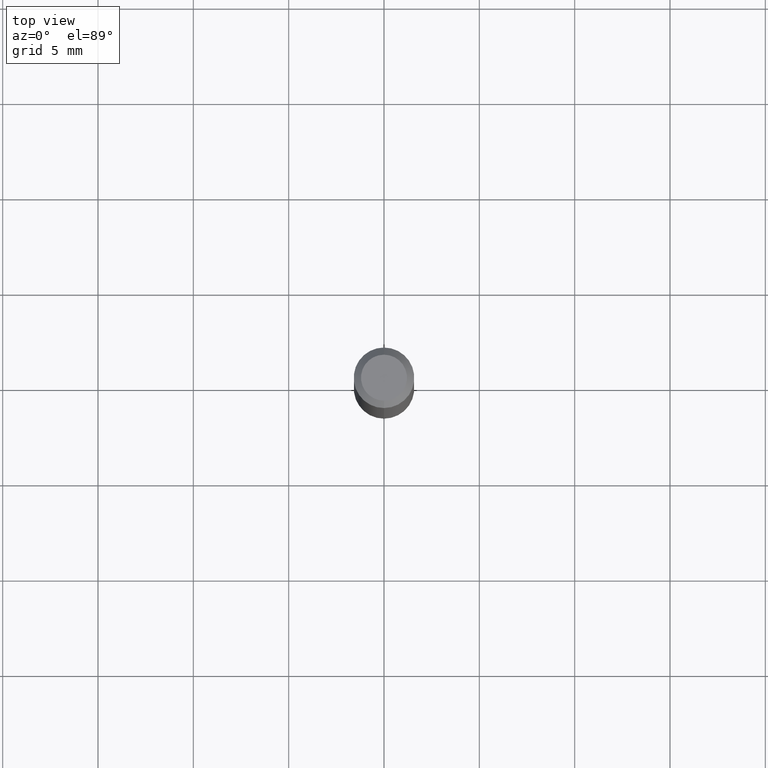
[diagram: clean part render]
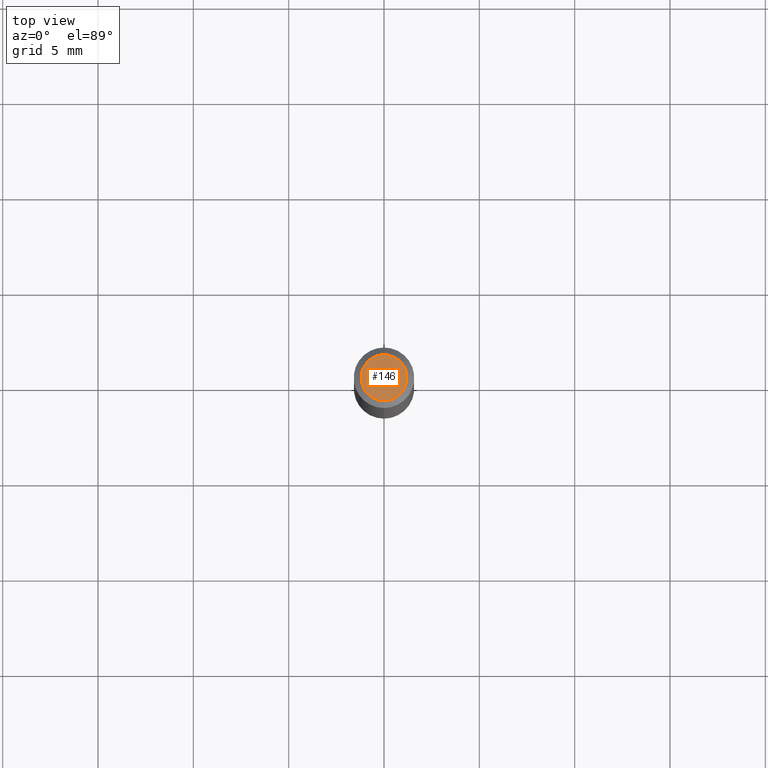
[diagram: same view with one face highlighted and labeled with its STEP entity id]
A machine part, top view. The second image highlights one B-rep face of the part: STEP entity #146.
In plain terms, the highlighted planar face has unit normal (0, -0, -1).
Its self-contained STEP definition (entity closure, byte-faithful):
#11 = DIRECTION ( 'NONE',  ( -6.982962677686266711E-15, -1.000000000000000000, 3.491459510913228997E-15 ) ) ;
#43 = DIRECTION ( 'NONE',  ( -2.445484048547130509E-29, 3.491459510913228997E-15, 1.000000000000000000 ) ) ;
#44 = ORIENTED_EDGE ( 'NONE', *, *, #319, .T. ) ;
#45 = CARTESIAN_POINT ( 'NONE',  ( -3.773273898774340269E-16, -0.04749999999999999362, 1.569829703498762016E-16 ) ) ;
#55 = DIRECTION ( 'NONE',  ( 6.982962677686265922E-15, 1.000000000000000000, -3.491459510913228997E-15 ) ) ;
#93 = CARTESIAN_POINT ( 'NONE',  ( 3.840629472727447874E-16, 0.04749999999999999362, -1.747056831868805136E-16 ) ) ;
#98 = AXIS2_PLACEMENT_3D ( 'NONE', #295, #252, #55 ) ;
#124 = VERTEX_POINT ( 'NONE', #93 ) ;
#146 = ADVANCED_FACE ( 'NONE', ( #494 ), #334, .F. ) ;
#172 = AXIS2_PLACEMENT_3D ( 'NONE', #365, #43, #11 ) ;
#196 = CIRCLE ( 'NONE', #343, 0.04749999999999999362 ) ;
#197 = DIRECTION ( 'NONE',  ( -2.445484048547130509E-29, 3.491459510913228997E-15, 1.000000000000000000 ) ) ;
#252 = DIRECTION ( 'NONE',  ( 2.445484048547130229E-29, -3.491459510913228997E-15, -1.000000000000000000 ) ) ;
#295 = CARTESIAN_POINT ( 'NONE',  ( 3.316907271900976096E-16, 0.04749999999999999362, -1.702750049776294233E-16 ) ) ;
#305 = VERTEX_POINT ( 'NONE', #45 ) ;
#319 = EDGE_CURVE ( 'NONE', #305, #124, #196, .T. ) ;
#327 = CIRCLE ( 'NONE', #172, 0.04749999999999999362 ) ;
#331 = DIRECTION ( 'NONE',  ( -6.982962677686266711E-15, -1.000000000000000000, 3.491459510913228997E-15 ) ) ;
#334 = PLANE ( 'NONE',  #98 ) ;
#343 = AXIS2_PLACEMENT_3D ( 'NONE', #474, #197, #331 ) ;
#361 = ORIENTED_EDGE ( 'NONE', *, *, #467, .T. ) ;
#365 = CARTESIAN_POINT ( 'NONE',  ( 2.167030576993772327E-46, -3.093906714697130127E-32, -8.861356418502143693E-18 ) ) ;
#434 = EDGE_LOOP ( 'NONE', ( #361, #44 ) ) ;
#467 = EDGE_CURVE ( 'NONE', #124, #305, #327, .T. ) ;
#474 = CARTESIAN_POINT ( 'NONE',  ( 2.167030576993772327E-46, -3.093906714697130127E-32, -8.861356418502143693E-18 ) ) ;
#494 = FACE_OUTER_BOUND ( 'NONE', #434, .T. ) ;